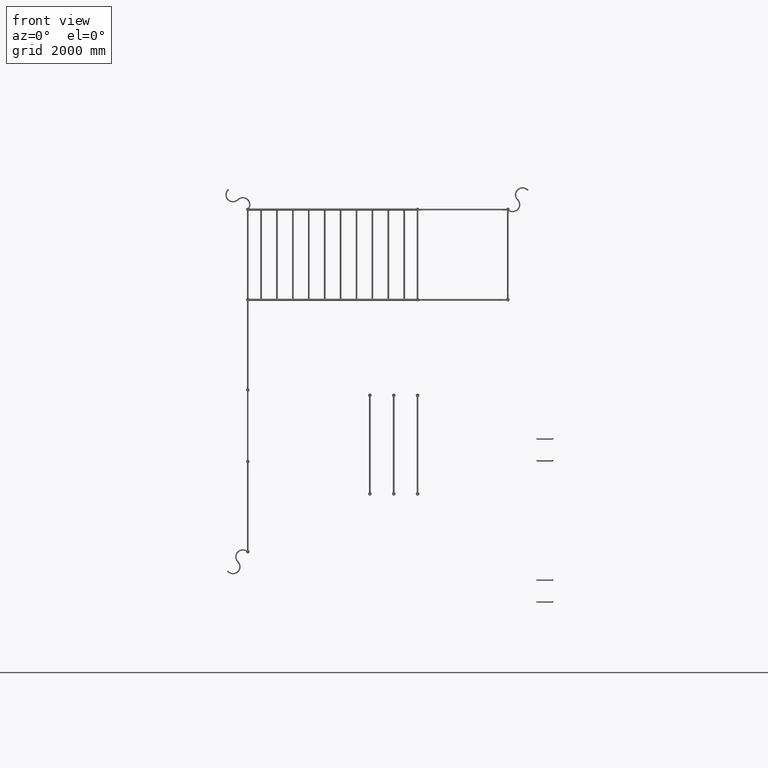
[diagram: clean part render]
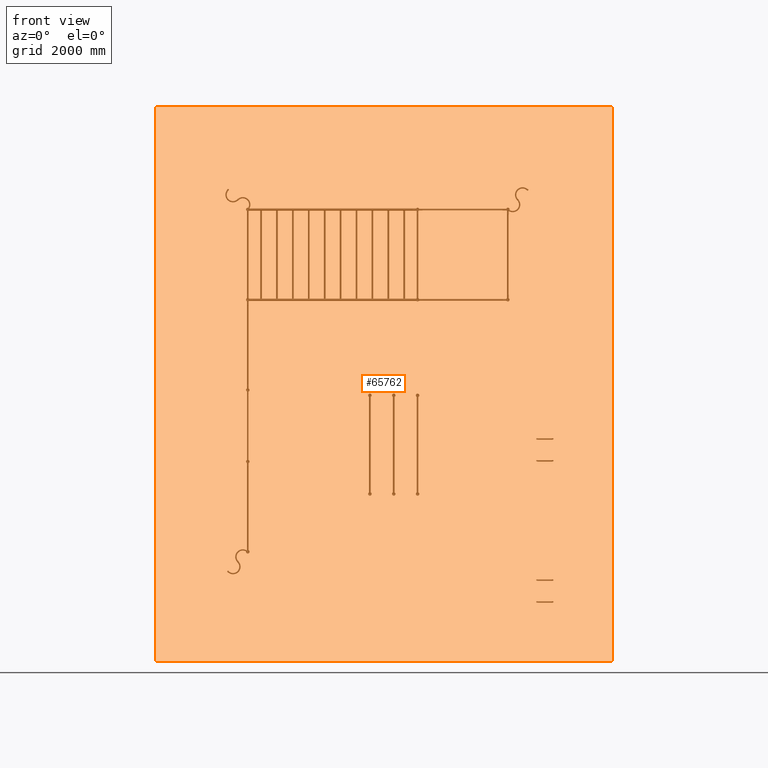
[diagram: same view with one face highlighted and labeled with its STEP entity id]
A machine part, front view. The second image highlights one B-rep face of the part: STEP entity #65762.
In plain terms, the highlighted planar face has unit normal (-0, -1, -0).
Its self-contained STEP definition (entity closure, byte-faithful):
#2973 = CARTESIAN_POINT ( 'NONE',  ( -13962.00000000000000, 0.000000000000000000, -2.220446049250313081E-13 ) ) ;
#4426 = DIRECTION ( 'NONE',  ( 0.000000000000000000, -0.000000000000000000, -1.000000000000000000 ) ) ;
#7919 = VERTEX_POINT ( 'NONE', #26277 ) ;
#9468 = EDGE_CURVE ( 'NONE', #65234, #39690, #39548, .T. ) ;
#9887 = CARTESIAN_POINT ( 'NONE',  ( 0.000000000000000000, 0.000000000000000000, 0.000000000000000000 ) ) ;
#11626 = ORIENTED_EDGE ( 'NONE', *, *, #69587, .T. ) ;
#12668 = ORIENTED_EDGE ( 'NONE', *, *, #21872, .T. ) ;
#15014 = DIRECTION ( 'NONE',  ( 1.000000000000000000, 0.000000000000000000, 1.590349555400596920E-17 ) ) ;
#21321 = CARTESIAN_POINT ( 'NONE',  ( 2.738682182856677703E-15, 0.000000000000000000, -11489.00000000000000 ) ) ;
#21563 = DIRECTION ( 'NONE',  ( 0.000000000000000000, 0.000000000000000000, 1.000000000000000000 ) ) ;
#21872 = EDGE_CURVE ( 'NONE', #39690, #7919, #42507, .T. ) ;
#22381 = VECTOR ( 'NONE', #26767, 1000.000000000000000 ) ;
#23511 = AXIS2_PLACEMENT_3D ( 'NONE', #9887, #56783, #4426 ) ;
#26277 = CARTESIAN_POINT ( 'NONE',  ( -13962.00000000000000, 0.000000000000000000, -11489.00000000000000 ) ) ;
#26767 = DIRECTION ( 'NONE',  ( 2.383742869576706308E-19, 0.000000000000000000, -1.000000000000000000 ) ) ;
#30108 = DIRECTION ( 'NONE',  ( -1.000000000000000000, 0.000000000000000000, -0.000000000000000000 ) ) ;
#31270 = CARTESIAN_POINT ( 'NONE',  ( -13962.00000000000000, 0.000000000000000000, 0.000000000000000000 ) ) ;
#31428 = VECTOR ( 'NONE', #15014, 1000.000000000000000 ) ;
#35959 = CARTESIAN_POINT ( 'NONE',  ( -13962.00000000000000, 0.000000000000000000, -11489.00000000000000 ) ) ;
#37523 = LINE ( 'NONE', #2973, #31428 ) ;
#37980 = CARTESIAN_POINT ( 'NONE',  ( 2.738682182856677703E-15, 0.000000000000000000, -11489.00000000000000 ) ) ;
#38268 = CARTESIAN_POINT ( 'NONE',  ( -13962.00000000000000, 0.000000000000000000, -11489.00000000000000 ) ) ;
#39548 = LINE ( 'NONE', #21321, #22381 ) ;
#39690 = VERTEX_POINT ( 'NONE', #37980 ) ;
#41814 = CARTESIAN_POINT ( 'NONE',  ( -3.552713678800500929E-12, 0.000000000000000000, -4.930380657631323784E-29 ) ) ;
#42507 = LINE ( 'NONE', #35959, #44920 ) ;
#44055 = LINE ( 'NONE', #38268, #57113 ) ;
#44920 = VECTOR ( 'NONE', #30108, 1000.000000000000000 ) ;
#46264 = FACE_OUTER_BOUND ( 'NONE', #75747, .T. ) ;
#47668 = ORIENTED_EDGE ( 'NONE', *, *, #9468, .T. ) ;
#49901 = VERTEX_POINT ( 'NONE', #31270 ) ;
#56783 = DIRECTION ( 'NONE',  ( 0.000000000000000000, -1.000000000000000000, 0.000000000000000000 ) ) ;
#57113 = VECTOR ( 'NONE', #21563, 1000.000000000000000 ) ;
#62638 = PLANE ( 'NONE',  #23511 ) ;
#65234 = VERTEX_POINT ( 'NONE', #41814 ) ;
#65762 = ADVANCED_FACE ( 'NONE', ( #46264 ), #62638, .F. ) ;
#69587 = EDGE_CURVE ( 'NONE', #7919, #49901, #44055, .T. ) ;
#75745 = ORIENTED_EDGE ( 'NONE', *, *, #76116, .T. ) ;
#75747 = EDGE_LOOP ( 'NONE', ( #12668, #11626, #75745, #47668 ) ) ;
#76116 = EDGE_CURVE ( 'NONE', #49901, #65234, #37523, .T. ) ;